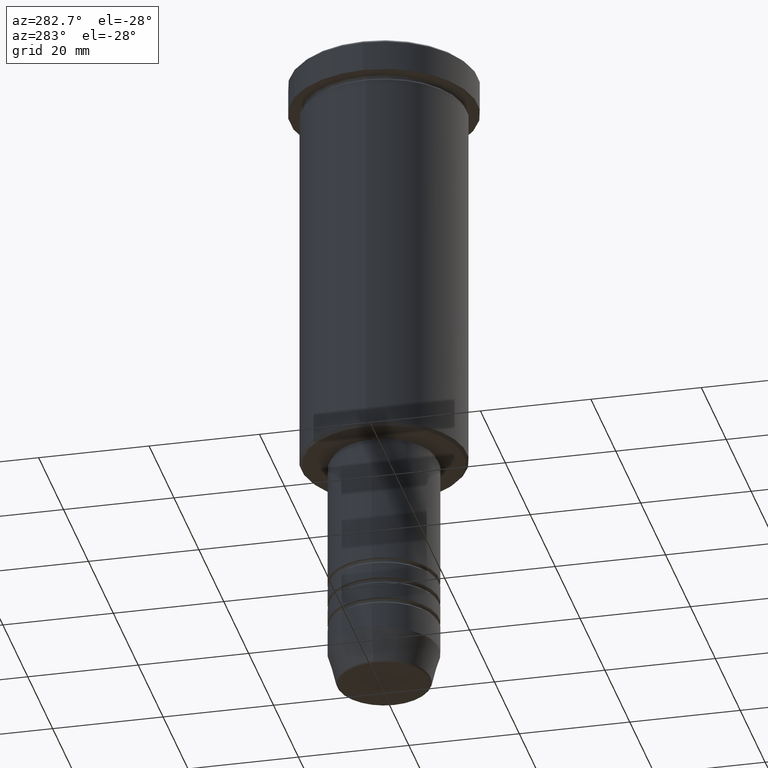
[diagram: clean part render]
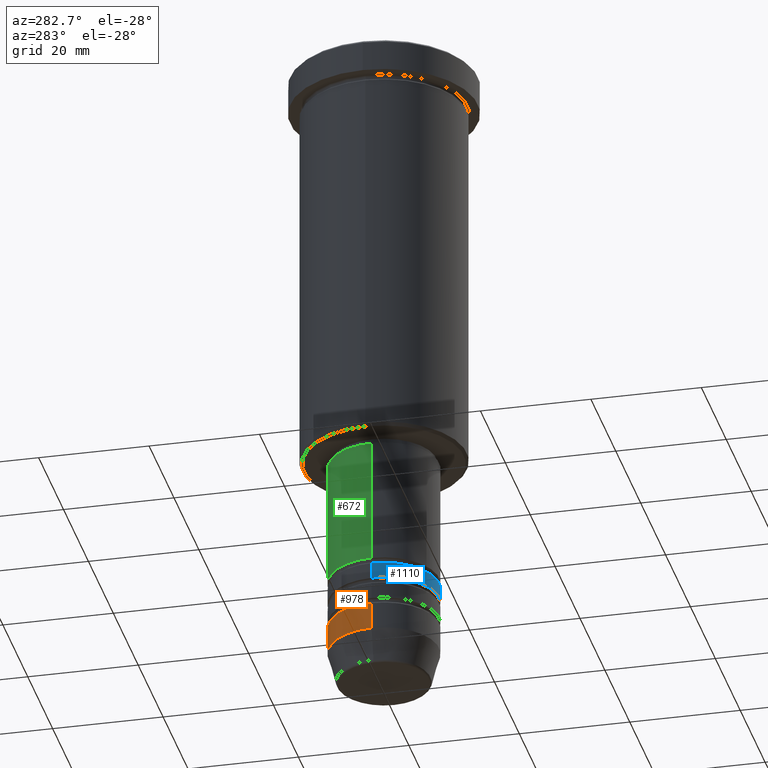
[diagram: same view with three faces highlighted in distinct colors, each labeled with its STEP entity id]
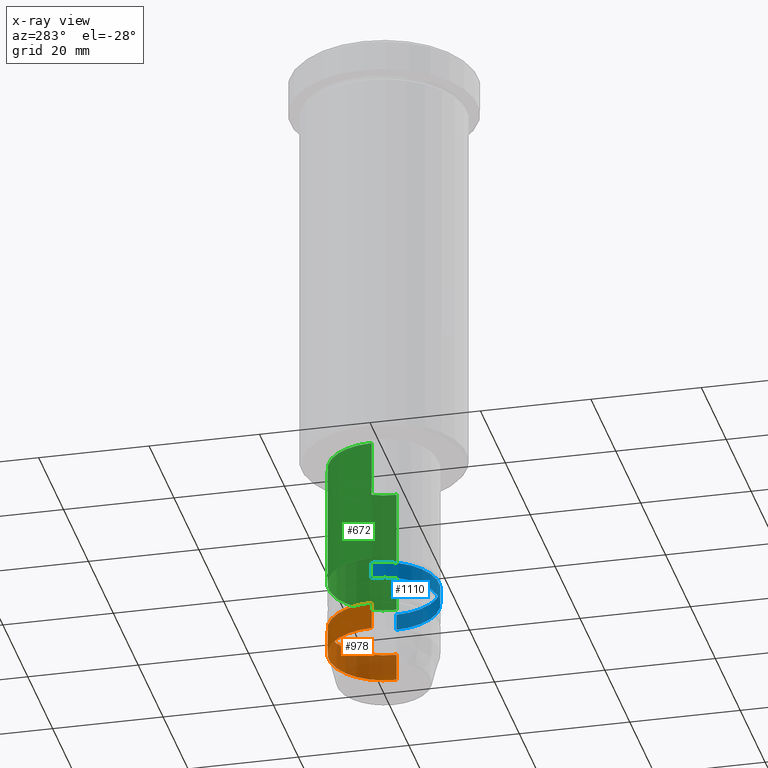
[diagram: x-ray of the same camera — body ghosted, the three highlighted faces saturated]
A machine part, auxiliary view with three faces highlighted in distinct colors.
The next image is the same camera in x-ray (body ghosted, the three faces saturated) — at least one of them is partly hidden behind the body in this view.
Their STEP definitions:

[orange] entity #978 — the highlighted cylindrical surface (partial cylindrical patch) has radius 10 mm, axis along (-0, -0, 1).
#8 = CARTESIAN_POINT ( 'NONE',  ( 0.000000000000000000, 0.000000000000000000, 0.000000000000000000 ) ) ;
#21 = EDGE_CURVE ( 'NONE', #233, #611, #121, .T. ) ;
#52 = DIRECTION ( 'NONE',  ( 1.000000000000000000, 0.000000000000000000, 0.000000000000000000 ) ) ;
#56 = EDGE_CURVE ( 'NONE', #631, #559, #817, .T. ) ;
#97 = CARTESIAN_POINT ( 'NONE',  ( -10.00000000000000178, 1.224646799147353454E-15, -113.9999999999999858 ) ) ;
#121 = CIRCLE ( 'NONE', #940, 10.00000000000000178 ) ;
#150 = AXIS2_PLACEMENT_3D ( 'NONE', #689, #964, #974 ) ;
#233 = VERTEX_POINT ( 'NONE', #859 ) ;
#273 = LINE ( 'NONE', #282, #621 ) ;
#282 = CARTESIAN_POINT ( 'NONE',  ( 10.00000000000000178, 0.000000000000000000, 0.000000000000000000 ) ) ;
#287 = VECTOR ( 'NONE', #592, 1000.000000000000000 ) ;
#369 = EDGE_LOOP ( 'NONE', ( #822, #376, #582, #703 ) ) ;
#375 = EDGE_CURVE ( 'NONE', #611, #559, #499, .T. ) ;
#376 = ORIENTED_EDGE ( 'NONE', *, *, #375, .T. ) ;
#481 = DIRECTION ( 'NONE',  ( -0.000000000000000000, -0.000000000000000000, 1.000000000000000000 ) ) ;
#482 = FACE_OUTER_BOUND ( 'NONE', #369, .T. ) ;
#484 = DIRECTION ( 'NONE',  ( 1.000000000000000000, 0.000000000000000000, 0.000000000000000000 ) ) ;
#499 = LINE ( 'NONE', #878, #287 ) ;
#559 = VERTEX_POINT ( 'NONE', #615 ) ;
#582 = ORIENTED_EDGE ( 'NONE', *, *, #56, .F. ) ;
#592 = DIRECTION ( 'NONE',  ( -0.000000000000000000, -0.000000000000000000, 1.000000000000000000 ) ) ;
#611 = VERTEX_POINT ( 'NONE', #97 ) ;
#615 = CARTESIAN_POINT ( 'NONE',  ( -10.00000000000000000, 1.224646799147353256E-15, -108.9999999999999858 ) ) ;
#621 = VECTOR ( 'NONE', #481, 1000.000000000000000 ) ;
#631 = VERTEX_POINT ( 'NONE', #755 ) ;
#652 = EDGE_CURVE ( 'NONE', #233, #631, #273, .T. ) ;
#689 = CARTESIAN_POINT ( 'NONE',  ( 0.000000000000000000, 0.000000000000000000, -108.9999999999999858 ) ) ;
#703 = ORIENTED_EDGE ( 'NONE', *, *, #652, .F. ) ;
#755 = CARTESIAN_POINT ( 'NONE',  ( 10.00000000000000000, 0.000000000000000000, -108.9999999999999858 ) ) ;
#817 = CIRCLE ( 'NONE', #150, 10.00000000000000000 ) ;
#820 = AXIS2_PLACEMENT_3D ( 'NONE', #8, #933, #484 ) ;
#822 = ORIENTED_EDGE ( 'NONE', *, *, #21, .T. ) ;
#851 = CYLINDRICAL_SURFACE ( 'NONE', #820, 10.00000000000000178 ) ;
#859 = CARTESIAN_POINT ( 'NONE',  ( 10.00000000000000178, 0.000000000000000000, -113.9999999999999858 ) ) ;
#868 = DIRECTION ( 'NONE',  ( -0.000000000000000000, -0.000000000000000000, 1.000000000000000000 ) ) ;
#878 = CARTESIAN_POINT ( 'NONE',  ( -10.00000000000000178, 1.224646799147353454E-15, 0.000000000000000000 ) ) ;
#933 = DIRECTION ( 'NONE',  ( -0.000000000000000000, -0.000000000000000000, 1.000000000000000000 ) ) ;
#940 = AXIS2_PLACEMENT_3D ( 'NONE', #954, #868, #52 ) ;
#954 = CARTESIAN_POINT ( 'NONE',  ( 0.000000000000000000, 0.000000000000000000, -113.9999999999999858 ) ) ;
#964 = DIRECTION ( 'NONE',  ( -0.000000000000000000, -0.000000000000000000, 1.000000000000000000 ) ) ;
#974 = DIRECTION ( 'NONE',  ( 1.000000000000000000, 0.000000000000000000, 0.000000000000000000 ) ) ;
#978 = ADVANCED_FACE ( 'NONE', ( #482 ), #851, .T. ) ;

[blue] entity #1110 — the highlighted cylindrical surface (partial cylindrical patch) has radius 10 mm, axis along (-0, -0, 1).
#19 = DIRECTION ( 'NONE',  ( -0.000000000000000000, -0.000000000000000000, 1.000000000000000000 ) ) ;
#33 = VERTEX_POINT ( 'NONE', #243 ) ;
#96 = DIRECTION ( 'NONE',  ( 1.000000000000000000, 0.000000000000000000, 0.000000000000000000 ) ) ;
#112 = EDGE_CURVE ( 'NONE', #1046, #33, #508, .T. ) ;
#175 = VERTEX_POINT ( 'NONE', #493 ) ;
#189 = CARTESIAN_POINT ( 'NONE',  ( 10.00000000000000178, 0.000000000000000000, 0.000000000000000000 ) ) ;
#202 = DIRECTION ( 'NONE',  ( -0.000000000000000000, -0.000000000000000000, 1.000000000000000000 ) ) ;
#209 = EDGE_CURVE ( 'NONE', #33, #175, #501, .T. ) ;
#243 = CARTESIAN_POINT ( 'NONE',  ( -10.00000000000000000, 1.224646799147353256E-15, -100.9999999999999716 ) ) ;
#277 = DIRECTION ( 'NONE',  ( 1.000000000000000000, 0.000000000000000000, 0.000000000000000000 ) ) ;
#314 = EDGE_LOOP ( 'NONE', ( #916, #1049, #598, #387 ) ) ;
#387 = ORIENTED_EDGE ( 'NONE', *, *, #209, .F. ) ;
#411 = CIRCLE ( 'NONE', #1173, 10.00000000000000178 ) ;
#437 = CARTESIAN_POINT ( 'NONE',  ( 0.000000000000000000, 0.000000000000000000, 0.000000000000000000 ) ) ;
#473 = CARTESIAN_POINT ( 'NONE',  ( -10.00000000000000178, 1.224646799147353454E-15, -103.9999999999999858 ) ) ;
#488 = AXIS2_PLACEMENT_3D ( 'NONE', #437, #633, #1159 ) ;
#493 = CARTESIAN_POINT ( 'NONE',  ( 10.00000000000000000, 0.000000000000000000, -100.9999999999999716 ) ) ;
#501 = CIRCLE ( 'NONE', #552, 10.00000000000000000 ) ;
#508 = LINE ( 'NONE', #790, #956 ) ;
#552 = AXIS2_PLACEMENT_3D ( 'NONE', #674, #202, #277 ) ;
#598 = ORIENTED_EDGE ( 'NONE', *, *, #712, .T. ) ;
#633 = DIRECTION ( 'NONE',  ( -0.000000000000000000, -0.000000000000000000, 1.000000000000000000 ) ) ;
#674 = CARTESIAN_POINT ( 'NONE',  ( 0.000000000000000000, 0.000000000000000000, -100.9999999999999716 ) ) ;
#712 = EDGE_CURVE ( 'NONE', #828, #175, #840, .T. ) ;
#733 = EDGE_CURVE ( 'NONE', #1046, #828, #411, .T. ) ;
#742 = VECTOR ( 'NONE', #1084, 1000.000000000000000 ) ;
#787 = CARTESIAN_POINT ( 'NONE',  ( 10.00000000000000178, 0.000000000000000000, -103.9999999999999858 ) ) ;
#790 = CARTESIAN_POINT ( 'NONE',  ( -10.00000000000000178, 1.224646799147353454E-15, 0.000000000000000000 ) ) ;
#812 = FACE_OUTER_BOUND ( 'NONE', #314, .T. ) ;
#828 = VERTEX_POINT ( 'NONE', #787 ) ;
#840 = LINE ( 'NONE', #189, #742 ) ;
#879 = DIRECTION ( 'NONE',  ( -0.000000000000000000, -0.000000000000000000, 1.000000000000000000 ) ) ;
#896 = CYLINDRICAL_SURFACE ( 'NONE', #488, 10.00000000000000178 ) ;
#916 = ORIENTED_EDGE ( 'NONE', *, *, #112, .F. ) ;
#956 = VECTOR ( 'NONE', #879, 1000.000000000000000 ) ;
#1046 = VERTEX_POINT ( 'NONE', #473 ) ;
#1049 = ORIENTED_EDGE ( 'NONE', *, *, #733, .T. ) ;
#1084 = DIRECTION ( 'NONE',  ( -0.000000000000000000, -0.000000000000000000, 1.000000000000000000 ) ) ;
#1097 = CARTESIAN_POINT ( 'NONE',  ( 0.000000000000000000, 0.000000000000000000, -103.9999999999999858 ) ) ;
#1110 = ADVANCED_FACE ( 'NONE', ( #812 ), #896, .T. ) ;
#1159 = DIRECTION ( 'NONE',  ( 1.000000000000000000, 0.000000000000000000, 0.000000000000000000 ) ) ;
#1173 = AXIS2_PLACEMENT_3D ( 'NONE', #1097, #19, #96 ) ;

[green] entity #672 — the highlighted cylindrical surface (partial cylindrical patch) has radius 10 mm, axis along (-0, -0, 1).
#34 = DIRECTION ( 'NONE',  ( -0.000000000000000000, -0.000000000000000000, 1.000000000000000000 ) ) ;
#68 = VECTOR ( 'NONE', #180, 1000.000000000000000 ) ;
#120 = CARTESIAN_POINT ( 'NONE',  ( 10.00000000000000000, 0.000000000000000000, 0.000000000000000000 ) ) ;
#180 = DIRECTION ( 'NONE',  ( -0.000000000000000000, -0.000000000000000000, 1.000000000000000000 ) ) ;
#184 = ORIENTED_EDGE ( 'NONE', *, *, #862, .F. ) ;
#228 = CYLINDRICAL_SURFACE ( 'NONE', #887, 10.00000000000000000 ) ;
#245 = VERTEX_POINT ( 'NONE', #932 ) ;
#274 = VERTEX_POINT ( 'NONE', #1092 ) ;
#309 = DIRECTION ( 'NONE',  ( 1.000000000000000000, 0.000000000000000000, 0.000000000000000000 ) ) ;
#355 = CIRCLE ( 'NONE', #980, 9.999999999999998224 ) ;
#365 = LINE ( 'NONE', #744, #68 ) ;
#396 = VERTEX_POINT ( 'NONE', #789 ) ;
#402 = CARTESIAN_POINT ( 'NONE',  ( 0.000000000000000000, 0.000000000000000000, 0.000000000000000000 ) ) ;
#492 = FACE_OUTER_BOUND ( 'NONE', #564, .T. ) ;
#564 = EDGE_LOOP ( 'NONE', ( #709, #893, #730, #184 ) ) ;
#610 = VERTEX_POINT ( 'NONE', #1023 ) ;
#671 = DIRECTION ( 'NONE',  ( -0.000000000000000000, -0.000000000000000000, 1.000000000000000000 ) ) ;
#672 = ADVANCED_FACE ( 'NONE', ( #492 ), #228, .T. ) ;
#699 = CARTESIAN_POINT ( 'NONE',  ( 0.000000000000000000, 0.000000000000000000, -77.00000000000004263 ) ) ;
#709 = ORIENTED_EDGE ( 'NONE', *, *, #931, .T. ) ;
#730 = ORIENTED_EDGE ( 'NONE', *, *, #900, .F. ) ;
#744 = CARTESIAN_POINT ( 'NONE',  ( -10.00000000000000000, 1.224646799147353256E-15, 0.000000000000000000 ) ) ;
#760 = VECTOR ( 'NONE', #779, 1000.000000000000000 ) ;
#768 = DIRECTION ( 'NONE',  ( 1.000000000000000000, 0.000000000000000000, 0.000000000000000000 ) ) ;
#779 = DIRECTION ( 'NONE',  ( -0.000000000000000000, -0.000000000000000000, 1.000000000000000000 ) ) ;
#789 = CARTESIAN_POINT ( 'NONE',  ( 10.00000000000000178, 0.000000000000000000, -99.99999999999997158 ) ) ;
#857 = EDGE_CURVE ( 'NONE', #245, #274, #365, .T. ) ;
#862 = EDGE_CURVE ( 'NONE', #396, #610, #967, .T. ) ;
#887 = AXIS2_PLACEMENT_3D ( 'NONE', #402, #1119, #309 ) ;
#893 = ORIENTED_EDGE ( 'NONE', *, *, #857, .T. ) ;
#900 = EDGE_CURVE ( 'NONE', #610, #274, #355, .T. ) ;
#931 = EDGE_CURVE ( 'NONE', #396, #245, #944, .T. ) ;
#932 = CARTESIAN_POINT ( 'NONE',  ( -10.00000000000000178, 1.224646799147353454E-15, -99.99999999999997158 ) ) ;
#937 = CARTESIAN_POINT ( 'NONE',  ( 0.000000000000000000, 0.000000000000000000, -99.99999999999997158 ) ) ;
#944 = CIRCLE ( 'NONE', #1089, 10.00000000000000178 ) ;
#967 = LINE ( 'NONE', #120, #760 ) ;
#980 = AXIS2_PLACEMENT_3D ( 'NONE', #699, #34, #1131 ) ;
#1023 = CARTESIAN_POINT ( 'NONE',  ( 9.999999999999998224, 0.000000000000000000, -77.00000000000004263 ) ) ;
#1089 = AXIS2_PLACEMENT_3D ( 'NONE', #937, #671, #768 ) ;
#1092 = CARTESIAN_POINT ( 'NONE',  ( -9.999999999999998224, 1.224646799147353256E-15, -77.00000000000004263 ) ) ;
#1119 = DIRECTION ( 'NONE',  ( -0.000000000000000000, -0.000000000000000000, 1.000000000000000000 ) ) ;
#1131 = DIRECTION ( 'NONE',  ( 1.000000000000000000, 0.000000000000000000, 0.000000000000000000 ) ) ;